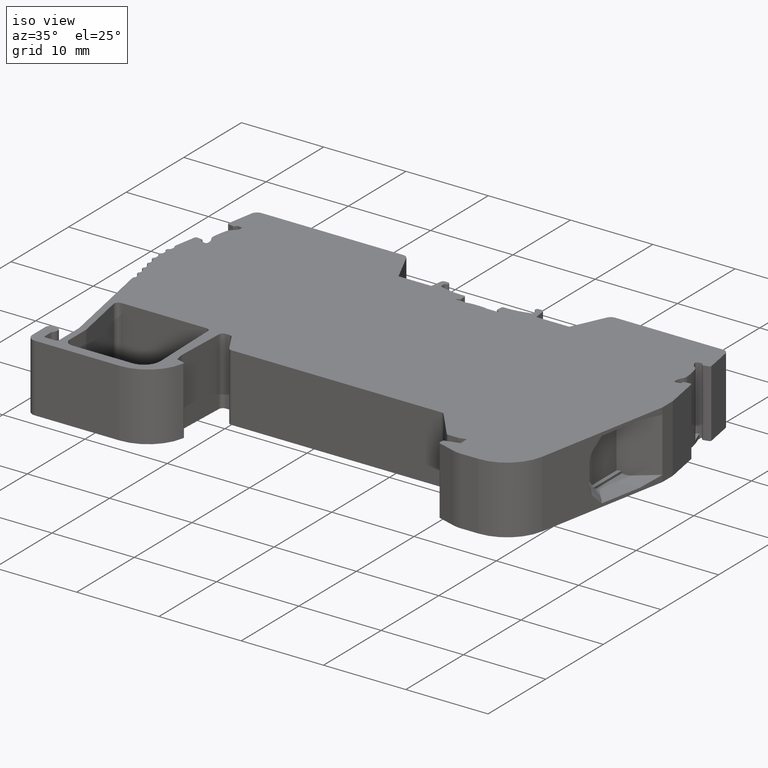
[diagram: clean part render]
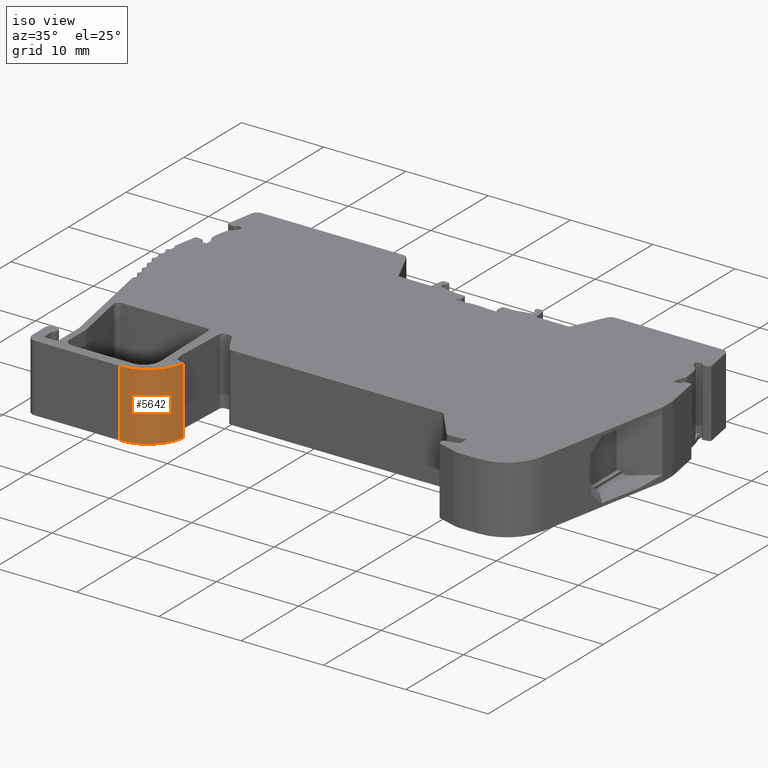
[diagram: same view with one face highlighted and labeled with its STEP entity id]
A machine part, iso view. The second image highlights one B-rep face of the part: STEP entity #5642.
In plain terms, the highlighted cylindrical surface (partial cylindrical patch) has radius 4.9561 mm, axis along (0, 0, -1).
Its self-contained STEP definition (entity closure, byte-faithful):
#476 = AXIS2_PLACEMENT_3D ( 'NONE', #8630, #477, #6759 ) ;
#477 = DIRECTION ( 'NONE',  ( 0.0000000000000000000, 0.0000000000000000000, 1.000000000000000000 ) ) ;
#1069 = VERTEX_POINT ( 'NONE', #9224 ) ;
#1070 = ORIENTED_EDGE ( 'NONE', *, *, #4032, .T. ) ;
#1168 = FACE_OUTER_BOUND ( 'NONE', #1806, .T. ) ;
#1582 = ORIENTED_EDGE ( 'NONE', *, *, #11867, .F. ) ;
#1806 = EDGE_LOOP ( 'NONE', ( #1070, #1582, #11143, #8044 ) ) ;
#2197 = DIRECTION ( 'NONE',  ( -1.000000000000000000, 0.0000000000000000000, 0.0000000000000000000 ) ) ;
#2636 = EDGE_CURVE ( 'NONE', #6365, #5524, #11858, .T. ) ;
#2713 = DIRECTION ( 'NONE',  ( 0.0000000000000000000, 0.0000000000000000000, 1.000000000000000000 ) ) ;
#3106 = CARTESIAN_POINT ( 'NONE',  ( -195.6374521962729887, 64.75000858106500345, 8.200000000000001066 ) ) ;
#4032 = EDGE_CURVE ( 'NONE', #1069, #4481, #11733, .T. ) ;
#4481 = VERTEX_POINT ( 'NONE', #10870 ) ;
#4555 = CARTESIAN_POINT ( 'NONE',  ( -190.7589694521070101, 63.87636874036969914, 8.200000000000001066 ) ) ;
#5524 = VERTEX_POINT ( 'NONE', #4555 ) ;
#5573 = DIRECTION ( 'NONE',  ( 0.0000000000000000000, 0.0000000000000000000, -1.000000000000000000 ) ) ;
#5642 = ADVANCED_FACE ( 'NONE', ( #1168 ), #8595, .T. ) ;
#5805 = DIRECTION ( 'NONE',  ( 0.0000000000000000000, 0.0000000000000000000, -1.000000000000000000 ) ) ;
#5911 = EDGE_CURVE ( 'NONE', #6365, #1069, #8635, .T. ) ;
#6365 = VERTEX_POINT ( 'NONE', #7718 ) ;
#6759 = DIRECTION ( 'NONE',  ( 1.000000000000000000, 0.0000000000000000000, 0.0000000000000000000 ) ) ;
#6780 = DIRECTION ( 'NONE',  ( 0.0000000000000000000, 0.0000000000000000000, -1.000000000000000000 ) ) ;
#7192 = LINE ( 'NONE', #8096, #10626 ) ;
#7555 = CARTESIAN_POINT ( 'NONE',  ( -195.6674071083604929, 59.79400785874680224, 8.200000000000001066 ) ) ;
#7718 = CARTESIAN_POINT ( 'NONE',  ( -195.6674071083604929, 59.79400785874680224, 8.200000000000001066 ) ) ;
#8044 = ORIENTED_EDGE ( 'NONE', *, *, #5911, .T. ) ;
#8096 = CARTESIAN_POINT ( 'NONE',  ( -190.7589694521070101, 63.87636874036969914, 8.200000000000001066 ) ) ;
#8197 = DIRECTION ( 'NONE',  ( 1.000000000000000000, 0.0000000000000000000, 0.0000000000000000000 ) ) ;
#8595 = CYLINDRICAL_SURFACE ( 'NONE', #10359, 4.956091247785510134 ) ;
#8630 = CARTESIAN_POINT ( 'NONE',  ( -195.6374521962729887, 64.75000858106500345, 8.200000000000001066 ) ) ;
#8635 = LINE ( 'NONE', #7555, #10901 ) ;
#9224 = CARTESIAN_POINT ( 'NONE',  ( -195.6674071083604929, 59.79400785874680224, 0.0000000000000000000 ) ) ;
#10125 = CARTESIAN_POINT ( 'NONE',  ( -195.6374521962729887, 64.75000858106500345, 0.0000000000000000000 ) ) ;
#10359 = AXIS2_PLACEMENT_3D ( 'NONE', #3106, #6780, #2197 ) ;
#10626 = VECTOR ( 'NONE', #5573, 1000.000000000000000 ) ;
#10870 = CARTESIAN_POINT ( 'NONE',  ( -190.7589694521070101, 63.87636874036969914, 0.0000000000000000000 ) ) ;
#10901 = VECTOR ( 'NONE', #5805, 1000.000000000000000 ) ;
#11143 = ORIENTED_EDGE ( 'NONE', *, *, #2636, .F. ) ;
#11151 = AXIS2_PLACEMENT_3D ( 'NONE', #10125, #2713, #8197 ) ;
#11733 = CIRCLE ( 'NONE', #11151, 4.956091247785510134 ) ;
#11858 = CIRCLE ( 'NONE', #476, 4.956091247785510134 ) ;
#11867 = EDGE_CURVE ( 'NONE', #5524, #4481, #7192, .T. ) ;